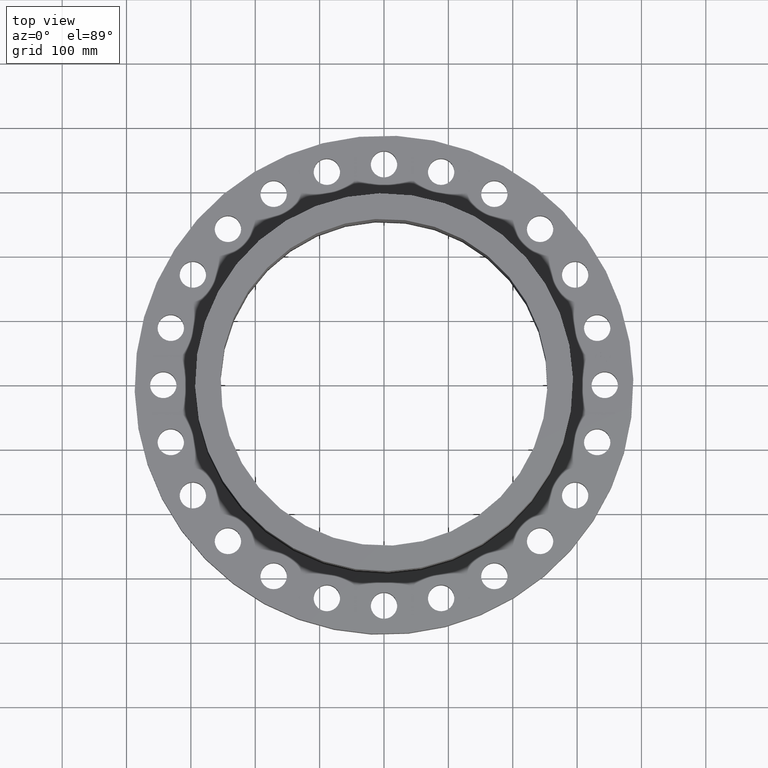
[diagram: clean part render]
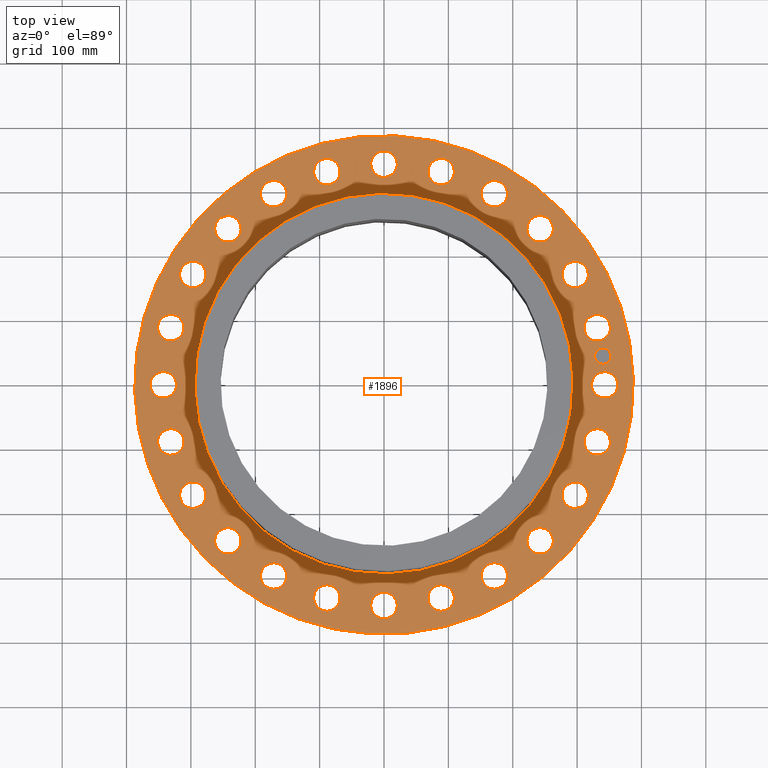
[diagram: same view with one face highlighted and labeled with its STEP entity id]
A machine part, top view. The second image highlights one B-rep face of the part: STEP entity #1896.
In plain terms, the highlighted planar face has unit normal (0, 0, -1).
Its self-contained STEP definition (entity closure, byte-faithful):
#51=AXIS2_PLACEMENT_3D('Circle Axis2P3D',#49,#50,$) ;
#542=AXIS2_PLACEMENT_3D('Circle Axis2P3D',#540,#541,$) ;
#566=AXIS2_PLACEMENT_3D('Circle Axis2P3D',#564,#565,$) ;
#585=AXIS2_PLACEMENT_3D('Circle Axis2P3D',#583,#584,$) ;
#602=AXIS2_PLACEMENT_3D('Circle Axis2P3D',#600,#601,$) ;
#637=AXIS2_PLACEMENT_3D('Circle Axis2P3D',#635,#636,$) ;
#794=AXIS2_PLACEMENT_3D('Circle Axis2P3D',#792,#793,$) ;
#813=AXIS2_PLACEMENT_3D('Circle Axis2P3D',#811,#812,$) ;
#837=AXIS2_PLACEMENT_3D('Circle Axis2P3D',#835,#836,$) ;
#856=AXIS2_PLACEMENT_3D('Circle Axis2P3D',#854,#855,$) ;
#880=AXIS2_PLACEMENT_3D('Circle Axis2P3D',#878,#879,$) ;
#899=AXIS2_PLACEMENT_3D('Circle Axis2P3D',#897,#898,$) ;
#923=AXIS2_PLACEMENT_3D('Circle Axis2P3D',#921,#922,$) ;
#942=AXIS2_PLACEMENT_3D('Circle Axis2P3D',#940,#941,$) ;
#966=AXIS2_PLACEMENT_3D('Circle Axis2P3D',#964,#965,$) ;
#985=AXIS2_PLACEMENT_3D('Circle Axis2P3D',#983,#984,$) ;
#1009=AXIS2_PLACEMENT_3D('Circle Axis2P3D',#1007,#1008,$) ;
#1028=AXIS2_PLACEMENT_3D('Circle Axis2P3D',#1026,#1027,$) ;
#1052=AXIS2_PLACEMENT_3D('Circle Axis2P3D',#1050,#1051,$) ;
#1071=AXIS2_PLACEMENT_3D('Circle Axis2P3D',#1069,#1070,$) ;
#1095=AXIS2_PLACEMENT_3D('Circle Axis2P3D',#1093,#1094,$) ;
#1114=AXIS2_PLACEMENT_3D('Circle Axis2P3D',#1112,#1113,$) ;
#1138=AXIS2_PLACEMENT_3D('Circle Axis2P3D',#1136,#1137,$) ;
#1157=AXIS2_PLACEMENT_3D('Circle Axis2P3D',#1155,#1156,$) ;
#1181=AXIS2_PLACEMENT_3D('Circle Axis2P3D',#1179,#1180,$) ;
#1200=AXIS2_PLACEMENT_3D('Circle Axis2P3D',#1198,#1199,$) ;
#1224=AXIS2_PLACEMENT_3D('Circle Axis2P3D',#1222,#1223,$) ;
#1243=AXIS2_PLACEMENT_3D('Circle Axis2P3D',#1241,#1242,$) ;
#1267=AXIS2_PLACEMENT_3D('Circle Axis2P3D',#1265,#1266,$) ;
#1286=AXIS2_PLACEMENT_3D('Circle Axis2P3D',#1284,#1285,$) ;
#1310=AXIS2_PLACEMENT_3D('Circle Axis2P3D',#1308,#1309,$) ;
#1329=AXIS2_PLACEMENT_3D('Circle Axis2P3D',#1327,#1328,$) ;
#1353=AXIS2_PLACEMENT_3D('Circle Axis2P3D',#1351,#1352,$) ;
#1372=AXIS2_PLACEMENT_3D('Circle Axis2P3D',#1370,#1371,$) ;
#1396=AXIS2_PLACEMENT_3D('Circle Axis2P3D',#1394,#1395,$) ;
#1415=AXIS2_PLACEMENT_3D('Circle Axis2P3D',#1413,#1414,$) ;
#1439=AXIS2_PLACEMENT_3D('Circle Axis2P3D',#1437,#1438,$) ;
#1458=AXIS2_PLACEMENT_3D('Circle Axis2P3D',#1456,#1457,$) ;
#1482=AXIS2_PLACEMENT_3D('Circle Axis2P3D',#1480,#1481,$) ;
#1501=AXIS2_PLACEMENT_3D('Circle Axis2P3D',#1499,#1500,$) ;
#1525=AXIS2_PLACEMENT_3D('Circle Axis2P3D',#1523,#1524,$) ;
#1544=AXIS2_PLACEMENT_3D('Circle Axis2P3D',#1542,#1543,$) ;
#1568=AXIS2_PLACEMENT_3D('Circle Axis2P3D',#1566,#1567,$) ;
#1587=AXIS2_PLACEMENT_3D('Circle Axis2P3D',#1585,#1586,$) ;
#1611=AXIS2_PLACEMENT_3D('Circle Axis2P3D',#1609,#1610,$) ;
#1630=AXIS2_PLACEMENT_3D('Circle Axis2P3D',#1628,#1629,$) ;
#1654=AXIS2_PLACEMENT_3D('Circle Axis2P3D',#1652,#1653,$) ;
#1673=AXIS2_PLACEMENT_3D('Circle Axis2P3D',#1671,#1672,$) ;
#1697=AXIS2_PLACEMENT_3D('Circle Axis2P3D',#1695,#1696,$) ;
#1716=AXIS2_PLACEMENT_3D('Circle Axis2P3D',#1714,#1715,$) ;
#1740=AXIS2_PLACEMENT_3D('Circle Axis2P3D',#1738,#1739,$) ;
#1759=AXIS2_PLACEMENT_3D('Circle Axis2P3D',#1757,#1758,$) ;
#1772=AXIS2_PLACEMENT_3D('Plane Axis2P3D',#1769,#1770,#1771) ;
#1880=AXIS2_PLACEMENT_3D('Circle Axis2P3D',#1878,#1879,$) ;
#1889=AXIS2_PLACEMENT_3D('Circle Axis2P3D',#1887,#1888,$) ;
#44=CARTESIAN_POINT('Vertex',(12.7891581249,-0.388334686271,2.75000000001)) ;
#49=CARTESIAN_POINT('Axis2P3D Location',(13.5000000001,0.,2.75000000001)) ;
#53=CARTESIAN_POINT('Vertex',(14.2108418752,0.388334686271,2.75000000001)) ;
#540=CARTESIAN_POINT('Axis2P3D Location',(13.5000000001,0.,2.75000000001)) ;
#561=CARTESIAN_POINT('Vertex',(-7.31123946374,-13.3831340689,2.75000000001)) ;
#564=CARTESIAN_POINT('Axis2P3D Location',(0.,0.,2.75000000001)) ;
#568=CARTESIAN_POINT('Vertex',(7.31123946374,13.3831340689,2.75000000001)) ;
#583=CARTESIAN_POINT('Axis2P3D Location',(0.,0.,2.75000000001)) ;
#600=CARTESIAN_POINT('Axis2P3D Location',(0.,0.,2.75000000001)) ;
#604=CARTESIAN_POINT('Vertex',(5.54215922629,10.1448544155,2.75000000001)) ;
#606=CARTESIAN_POINT('Vertex',(-5.54215922629,-10.1448544155,2.75000000001)) ;
#635=CARTESIAN_POINT('Axis2P3D Location',(0.,0.,2.75000000001)) ;
#789=CARTESIAN_POINT('Vertex',(12.2528697167,-3.68518019627,2.75000000001)) ;
#792=CARTESIAN_POINT('Axis2P3D Location',(13.039998655,-3.4940571089,2.75000000001)) ;
#796=CARTESIAN_POINT('Vertex',(13.8271275932,-3.30293402153,2.75000000001)) ;
#811=CARTESIAN_POINT('Axis2P3D Location',(13.039998655,-3.4940571089,2.75000000001)) ;
#832=CARTESIAN_POINT('Vertex',(10.8815684861,-6.73088676594,2.75000000001)) ;
#835=CARTESIAN_POINT('Axis2P3D Location',(11.6913429511,-6.75000000003,2.75000000001)) ;
#839=CARTESIAN_POINT('Vertex',(12.5011174162,-6.76911323411,2.75000000001)) ;
#854=CARTESIAN_POINT('Axis2P3D Location',(11.6913429511,-6.75000000003,2.75000000001)) ;
#875=CARTESIAN_POINT('Vertex',(8.76870634577,-9.31789452583,2.75000000001)) ;
#878=CARTESIAN_POINT('Axis2P3D Location',(9.54594154606,-9.54594154606,2.75000000001)) ;
#882=CARTESIAN_POINT('Vertex',(10.3231767463,-9.77398856628,2.75000000001)) ;
#897=CARTESIAN_POINT('Axis2P3D Location',(9.54594154606,-9.54594154606,2.75000000001)) ;
#918=CARTESIAN_POINT('Vertex',(6.05827135898,-11.2699031723,2.75000000001)) ;
#921=CARTESIAN_POINT('Axis2P3D Location',(6.75000000003,-11.6913429511,2.75000000001)) ;
#925=CARTESIAN_POINT('Vertex',(7.44172864108,-12.1127827299,2.75000000001)) ;
#940=CARTESIAN_POINT('Axis2P3D Location',(6.75000000003,-11.6913429511,2.75000000001)) ;
#961=CARTESIAN_POINT('Vertex',(2.93497519084,-12.453886542,2.75000000001)) ;
#964=CARTESIAN_POINT('Axis2P3D Location',(3.4940571089,-13.039998655,2.75000000001)) ;
#968=CARTESIAN_POINT('Vertex',(4.05313902695,-13.6261107679,2.75000000001)) ;
#983=CARTESIAN_POINT('Axis2P3D Location',(3.4940571089,-13.039998655,2.75000000001)) ;
#1004=CARTESIAN_POINT('Vertex',(-0.388334686271,-12.7891581249,2.75000000001)) ;
#1007=CARTESIAN_POINT('Axis2P3D Location',(-1.41129328698E-015,-13.5000000001,2.75000000001)) ;
#1011=CARTESIAN_POINT('Vertex',(0.388334686271,-14.2108418752,2.75000000001)) ;
#1026=CARTESIAN_POINT('Axis2P3D Location',(-1.41129328698E-015,-13.5000000001,2.75000000001)) ;
#1047=CARTESIAN_POINT('Vertex',(-3.68518019627,-12.2528697167,2.75000000001)) ;
#1050=CARTESIAN_POINT('Axis2P3D Location',(-3.4940571089,-13.039998655,2.75000000001)) ;
#1054=CARTESIAN_POINT('Vertex',(-3.30293402153,-13.8271275932,2.75000000001)) ;
#1069=CARTESIAN_POINT('Axis2P3D Location',(-3.4940571089,-13.039998655,2.75000000001)) ;
#1090=CARTESIAN_POINT('Vertex',(-6.73088676594,-10.8815684861,2.75000000001)) ;
#1093=CARTESIAN_POINT('Axis2P3D Location',(-6.75000000003,-11.6913429511,2.75000000001)) ;
#1097=CARTESIAN_POINT('Vertex',(-6.76911323411,-12.5011174162,2.75000000001)) ;
#1112=CARTESIAN_POINT('Axis2P3D Location',(-6.75000000003,-11.6913429511,2.75000000001)) ;
#1133=CARTESIAN_POINT('Vertex',(-9.31789452583,-8.76870634577,2.75000000001)) ;
#1136=CARTESIAN_POINT('Axis2P3D Location',(-9.54594154606,-9.54594154606,2.75000000001)) ;
#1140=CARTESIAN_POINT('Vertex',(-9.77398856628,-10.3231767463,2.75000000001)) ;
#1155=CARTESIAN_POINT('Axis2P3D Location',(-9.54594154606,-9.54594154606,2.75000000001)) ;
#1176=CARTESIAN_POINT('Vertex',(-11.2699031723,-6.05827135898,2.75000000001)) ;
#1179=CARTESIAN_POINT('Axis2P3D Location',(-11.6913429511,-6.75000000003,2.75000000001)) ;
#1183=CARTESIAN_POINT('Vertex',(-12.1127827299,-7.44172864108,2.75000000001)) ;
#1198=CARTESIAN_POINT('Axis2P3D Location',(-11.6913429511,-6.75000000003,2.75000000001)) ;
#1219=CARTESIAN_POINT('Vertex',(-12.453886542,-2.93497519084,2.75000000001)) ;
#1222=CARTESIAN_POINT('Axis2P3D Location',(-13.039998655,-3.4940571089,2.75000000001)) ;
#1226=CARTESIAN_POINT('Vertex',(-13.6261107679,-4.05313902695,2.75000000001)) ;
#1241=CARTESIAN_POINT('Axis2P3D Location',(-13.039998655,-3.4940571089,2.75000000001)) ;
#1262=CARTESIAN_POINT('Vertex',(-12.7891581249,0.388334686271,2.75000000001)) ;
#1265=CARTESIAN_POINT('Axis2P3D Location',(-13.5000000001,-1.65327317886E-015,2.75000000001)) ;
#1269=CARTESIAN_POINT('Vertex',(-14.2108418752,-0.388334686271,2.75000000001)) ;
#1284=CARTESIAN_POINT('Axis2P3D Location',(-13.5000000001,-1.65327317886E-015,2.75000000001)) ;
#1305=CARTESIAN_POINT('Vertex',(-12.2528697167,3.68518019627,2.75000000001)) ;
#1308=CARTESIAN_POINT('Axis2P3D Location',(-13.039998655,3.4940571089,2.75000000001)) ;
#1312=CARTESIAN_POINT('Vertex',(-13.8271275932,3.30293402153,2.75000000001)) ;
#1327=CARTESIAN_POINT('Axis2P3D Location',(-13.039998655,3.4940571089,2.75000000001)) ;
#1348=CARTESIAN_POINT('Vertex',(-10.8815684861,6.73088676594,2.75000000001)) ;
#1351=CARTESIAN_POINT('Axis2P3D Location',(-11.6913429511,6.75000000003,2.75000000001)) ;
#1355=CARTESIAN_POINT('Vertex',(-12.5011174162,6.76911323411,2.75000000001)) ;
#1370=CARTESIAN_POINT('Axis2P3D Location',(-11.6913429511,6.75000000003,2.75000000001)) ;
#1391=CARTESIAN_POINT('Vertex',(-8.76870634577,9.31789452583,2.75000000001)) ;
#1394=CARTESIAN_POINT('Axis2P3D Location',(-9.54594154606,9.54594154606,2.75000000001)) ;
#1398=CARTESIAN_POINT('Vertex',(-10.3231767463,9.77398856628,2.75000000001)) ;
#1413=CARTESIAN_POINT('Axis2P3D Location',(-9.54594154606,9.54594154606,2.75000000001)) ;
#1434=CARTESIAN_POINT('Vertex',(-6.05827135898,11.2699031723,2.75000000001)) ;
#1437=CARTESIAN_POINT('Axis2P3D Location',(-6.75000000003,11.6913429511,2.75000000001)) ;
#1441=CARTESIAN_POINT('Vertex',(-7.44172864108,12.1127827299,2.75000000001)) ;
#1456=CARTESIAN_POINT('Axis2P3D Location',(-6.75000000003,11.6913429511,2.75000000001)) ;
#1477=CARTESIAN_POINT('Vertex',(-2.93497519084,12.453886542,2.75000000001)) ;
#1480=CARTESIAN_POINT('Axis2P3D Location',(-3.4940571089,13.039998655,2.75000000001)) ;
#1484=CARTESIAN_POINT('Vertex',(-4.05313902695,13.6261107679,2.75000000001)) ;
#1499=CARTESIAN_POINT('Axis2P3D Location',(-3.4940571089,13.039998655,2.75000000001)) ;
#1520=CARTESIAN_POINT('Vertex',(0.388334686271,12.7891581249,2.75000000001)) ;
#1523=CARTESIAN_POINT('Axis2P3D Location',(-2.47990976828E-015,13.5000000001,2.75000000001)) ;
#1527=CARTESIAN_POINT('Vertex',(-0.388334686271,14.2108418752,2.75000000001)) ;
#1542=CARTESIAN_POINT('Axis2P3D Location',(-2.47990976828E-015,13.5000000001,2.75000000001)) ;
#1563=CARTESIAN_POINT('Vertex',(3.68518019627,12.2528697167,2.75000000001)) ;
#1566=CARTESIAN_POINT('Axis2P3D Location',(3.4940571089,13.039998655,2.75000000001)) ;
#1570=CARTESIAN_POINT('Vertex',(3.30293402153,13.8271275932,2.75000000001)) ;
#1585=CARTESIAN_POINT('Axis2P3D Location',(3.4940571089,13.039998655,2.75000000001)) ;
#1606=CARTESIAN_POINT('Vertex',(6.73088676594,10.8815684861,2.75000000001)) ;
#1609=CARTESIAN_POINT('Axis2P3D Location',(6.75000000003,11.6913429511,2.75000000001)) ;
#1613=CARTESIAN_POINT('Vertex',(6.76911323411,12.5011174162,2.75000000001)) ;
#1628=CARTESIAN_POINT('Axis2P3D Location',(6.75000000003,11.6913429511,2.75000000001)) ;
#1649=CARTESIAN_POINT('Vertex',(9.31789452583,8.76870634577,2.75000000001)) ;
#1652=CARTESIAN_POINT('Axis2P3D Location',(9.54594154606,9.54594154606,2.75000000001)) ;
#1656=CARTESIAN_POINT('Vertex',(9.77398856628,10.3231767463,2.75000000001)) ;
#1671=CARTESIAN_POINT('Axis2P3D Location',(9.54594154606,9.54594154606,2.75000000001)) ;
#1692=CARTESIAN_POINT('Vertex',(11.2699031723,6.05827135898,2.75000000001)) ;
#1695=CARTESIAN_POINT('Axis2P3D Location',(11.6913429511,6.75000000003,2.75000000001)) ;
#1699=CARTESIAN_POINT('Vertex',(12.1127827299,7.44172864108,2.75000000001)) ;
#1714=CARTESIAN_POINT('Axis2P3D Location',(11.6913429511,6.75000000003,2.75000000001)) ;
#1735=CARTESIAN_POINT('Vertex',(12.453886542,2.93497519084,2.75000000001)) ;
#1738=CARTESIAN_POINT('Axis2P3D Location',(13.039998655,3.4940571089,2.75000000001)) ;
#1742=CARTESIAN_POINT('Vertex',(13.6261107679,4.05313902695,2.75000000001)) ;
#1757=CARTESIAN_POINT('Axis2P3D Location',(13.039998655,3.4940571089,2.75000000001)) ;
#1769=CARTESIAN_POINT('Axis2P3D Location',(0.,15.2500000001,2.75000000001)) ;
#1878=CARTESIAN_POINT('Axis2P3D Location',(13.3845056286,1.76210359498,2.75000000001)) ;
#1882=CARTESIAN_POINT('Vertex',(13.4497687241,1.26638116925,2.75000000001)) ;
#1884=CARTESIAN_POINT('Vertex',(13.3192425331,2.25782602071,2.75000000001)) ;
#1887=CARTESIAN_POINT('Axis2P3D Location',(13.3845056286,1.76210359498,2.75000000001)) ;
#50=DIRECTION('Axis2P3D Direction',(0.,-0.,0.0393700787402)) ;
#541=DIRECTION('Axis2P3D Direction',(0.,-0.,0.0393700787402)) ;
#565=DIRECTION('Axis2P3D Direction',(0.,0.,-0.0393700787402)) ;
#584=DIRECTION('Axis2P3D Direction',(0.,0.,-0.0393700787402)) ;
#601=DIRECTION('Axis2P3D Direction',(0.,0.,-0.0393700787402)) ;
#636=DIRECTION('Axis2P3D Direction',(0.,0.,-0.0393700787402)) ;
#793=DIRECTION('Axis2P3D Direction',(-0.,0.,0.0393700787402)) ;
#812=DIRECTION('Axis2P3D Direction',(-0.,0.,0.0393700787402)) ;
#836=DIRECTION('Axis2P3D Direction',(-0.,0.,0.0393700787402)) ;
#855=DIRECTION('Axis2P3D Direction',(-0.,0.,0.0393700787402)) ;
#879=DIRECTION('Axis2P3D Direction',(-0.,0.,0.0393700787402)) ;
#898=DIRECTION('Axis2P3D Direction',(-0.,0.,0.0393700787402)) ;
#922=DIRECTION('Axis2P3D Direction',(-0.,0.,0.0393700787402)) ;
#941=DIRECTION('Axis2P3D Direction',(-0.,0.,0.0393700787402)) ;
#965=DIRECTION('Axis2P3D Direction',(-0.,0.,0.0393700787402)) ;
#984=DIRECTION('Axis2P3D Direction',(-0.,0.,0.0393700787402)) ;
#1008=DIRECTION('Axis2P3D Direction',(-0.,0.,0.0393700787402)) ;
#1027=DIRECTION('Axis2P3D Direction',(-0.,0.,0.0393700787402)) ;
#1051=DIRECTION('Axis2P3D Direction',(0.,0.,0.0393700787402)) ;
#1070=DIRECTION('Axis2P3D Direction',(0.,0.,0.0393700787402)) ;
#1094=DIRECTION('Axis2P3D Direction',(0.,0.,0.0393700787402)) ;
#1113=DIRECTION('Axis2P3D Direction',(0.,0.,0.0393700787402)) ;
#1137=DIRECTION('Axis2P3D Direction',(0.,0.,0.0393700787402)) ;
#1156=DIRECTION('Axis2P3D Direction',(0.,0.,0.0393700787402)) ;
#1180=DIRECTION('Axis2P3D Direction',(0.,0.,0.0393700787402)) ;
#1199=DIRECTION('Axis2P3D Direction',(0.,0.,0.0393700787402)) ;
#1223=DIRECTION('Axis2P3D Direction',(0.,0.,0.0393700787402)) ;
#1242=DIRECTION('Axis2P3D Direction',(0.,0.,0.0393700787402)) ;
#1266=DIRECTION('Axis2P3D Direction',(0.,0.,0.0393700787402)) ;
#1285=DIRECTION('Axis2P3D Direction',(0.,0.,0.0393700787402)) ;
#1309=DIRECTION('Axis2P3D Direction',(0.,0.,0.0393700787402)) ;
#1328=DIRECTION('Axis2P3D Direction',(0.,0.,0.0393700787402)) ;
#1352=DIRECTION('Axis2P3D Direction',(0.,0.,0.0393700787402)) ;
#1371=DIRECTION('Axis2P3D Direction',(0.,0.,0.0393700787402)) ;
#1395=DIRECTION('Axis2P3D Direction',(0.,0.,0.0393700787402)) ;
#1414=DIRECTION('Axis2P3D Direction',(0.,0.,0.0393700787402)) ;
#1438=DIRECTION('Axis2P3D Direction',(0.,0.,0.0393700787402)) ;
#1457=DIRECTION('Axis2P3D Direction',(0.,0.,0.0393700787402)) ;
#1481=DIRECTION('Axis2P3D Direction',(0.,0.,0.0393700787402)) ;
#1500=DIRECTION('Axis2P3D Direction',(0.,0.,0.0393700787402)) ;
#1524=DIRECTION('Axis2P3D Direction',(0.,0.,0.0393700787402)) ;
#1543=DIRECTION('Axis2P3D Direction',(0.,0.,0.0393700787402)) ;
#1567=DIRECTION('Axis2P3D Direction',(0.,-0.,0.0393700787402)) ;
#1586=DIRECTION('Axis2P3D Direction',(0.,-0.,0.0393700787402)) ;
#1610=DIRECTION('Axis2P3D Direction',(0.,-0.,0.0393700787402)) ;
#1629=DIRECTION('Axis2P3D Direction',(0.,-0.,0.0393700787402)) ;
#1653=DIRECTION('Axis2P3D Direction',(0.,-0.,0.0393700787402)) ;
#1672=DIRECTION('Axis2P3D Direction',(0.,-0.,0.0393700787402)) ;
#1696=DIRECTION('Axis2P3D Direction',(0.,-0.,0.0393700787402)) ;
#1715=DIRECTION('Axis2P3D Direction',(0.,-0.,0.0393700787402)) ;
#1739=DIRECTION('Axis2P3D Direction',(0.,-0.,0.0393700787402)) ;
#1758=DIRECTION('Axis2P3D Direction',(0.,-0.,0.0393700787402)) ;
#1770=DIRECTION('Axis2P3D Direction',(0.,0.,-0.0393700787402)) ;
#1771=DIRECTION('Axis2P3D XDirection',(0.0393700787402,0.,0.)) ;
#1879=DIRECTION('Axis2P3D Direction',(0.,0.,-0.0393700787402)) ;
#1888=DIRECTION('Axis2P3D Direction',(0.,0.,-0.0393700787402)) ;
#1775=ORIENTED_EDGE('',*,*,#587,.F.) ;
#1776=ORIENTED_EDGE('',*,*,#570,.F.) ;
#1779=ORIENTED_EDGE('',*,*,#55,.T.) ;
#1780=ORIENTED_EDGE('',*,*,#544,.T.) ;
#1783=ORIENTED_EDGE('',*,*,#639,.T.) ;
#1784=ORIENTED_EDGE('',*,*,#608,.T.) ;
#1787=ORIENTED_EDGE('',*,*,#815,.T.) ;
#1788=ORIENTED_EDGE('',*,*,#798,.T.) ;
#1791=ORIENTED_EDGE('',*,*,#858,.T.) ;
#1792=ORIENTED_EDGE('',*,*,#841,.T.) ;
#1795=ORIENTED_EDGE('',*,*,#901,.T.) ;
#1796=ORIENTED_EDGE('',*,*,#884,.T.) ;
#1799=ORIENTED_EDGE('',*,*,#944,.T.) ;
#1800=ORIENTED_EDGE('',*,*,#927,.T.) ;
#1803=ORIENTED_EDGE('',*,*,#987,.T.) ;
#1804=ORIENTED_EDGE('',*,*,#970,.T.) ;
#1807=ORIENTED_EDGE('',*,*,#1030,.T.) ;
#1808=ORIENTED_EDGE('',*,*,#1013,.T.) ;
#1811=ORIENTED_EDGE('',*,*,#1073,.T.) ;
#1812=ORIENTED_EDGE('',*,*,#1056,.T.) ;
#1815=ORIENTED_EDGE('',*,*,#1116,.T.) ;
#1816=ORIENTED_EDGE('',*,*,#1099,.T.) ;
#1819=ORIENTED_EDGE('',*,*,#1159,.T.) ;
#1820=ORIENTED_EDGE('',*,*,#1142,.T.) ;
#1823=ORIENTED_EDGE('',*,*,#1202,.T.) ;
#1824=ORIENTED_EDGE('',*,*,#1185,.T.) ;
#1827=ORIENTED_EDGE('',*,*,#1245,.T.) ;
#1828=ORIENTED_EDGE('',*,*,#1228,.T.) ;
#1831=ORIENTED_EDGE('',*,*,#1288,.T.) ;
#1832=ORIENTED_EDGE('',*,*,#1271,.T.) ;
#1835=ORIENTED_EDGE('',*,*,#1331,.T.) ;
#1836=ORIENTED_EDGE('',*,*,#1314,.T.) ;
#1839=ORIENTED_EDGE('',*,*,#1374,.T.) ;
#1840=ORIENTED_EDGE('',*,*,#1357,.T.) ;
#1843=ORIENTED_EDGE('',*,*,#1417,.T.) ;
#1844=ORIENTED_EDGE('',*,*,#1400,.T.) ;
#1847=ORIENTED_EDGE('',*,*,#1460,.T.) ;
#1848=ORIENTED_EDGE('',*,*,#1443,.T.) ;
#1851=ORIENTED_EDGE('',*,*,#1503,.T.) ;
#1852=ORIENTED_EDGE('',*,*,#1486,.T.) ;
#1855=ORIENTED_EDGE('',*,*,#1546,.T.) ;
#1856=ORIENTED_EDGE('',*,*,#1529,.T.) ;
#1859=ORIENTED_EDGE('',*,*,#1589,.T.) ;
#1860=ORIENTED_EDGE('',*,*,#1572,.T.) ;
#1863=ORIENTED_EDGE('',*,*,#1632,.T.) ;
#1864=ORIENTED_EDGE('',*,*,#1615,.T.) ;
#1867=ORIENTED_EDGE('',*,*,#1675,.T.) ;
#1868=ORIENTED_EDGE('',*,*,#1658,.T.) ;
#1871=ORIENTED_EDGE('',*,*,#1718,.T.) ;
#1872=ORIENTED_EDGE('',*,*,#1701,.T.) ;
#1875=ORIENTED_EDGE('',*,*,#1761,.T.) ;
#1876=ORIENTED_EDGE('',*,*,#1744,.T.) ;
#1893=ORIENTED_EDGE('',*,*,#1886,.F.) ;
#1894=ORIENTED_EDGE('',*,*,#1891,.F.) ;
#1781=FACE_BOUND('',#1778,.T.) ;
#1785=FACE_BOUND('',#1782,.T.) ;
#1789=FACE_BOUND('',#1786,.T.) ;
#1793=FACE_BOUND('',#1790,.T.) ;
#1797=FACE_BOUND('',#1794,.T.) ;
#1801=FACE_BOUND('',#1798,.T.) ;
#1805=FACE_BOUND('',#1802,.T.) ;
#1809=FACE_BOUND('',#1806,.T.) ;
#1813=FACE_BOUND('',#1810,.T.) ;
#1817=FACE_BOUND('',#1814,.T.) ;
#1821=FACE_BOUND('',#1818,.T.) ;
#1825=FACE_BOUND('',#1822,.T.) ;
#1829=FACE_BOUND('',#1826,.T.) ;
#1833=FACE_BOUND('',#1830,.T.) ;
#1837=FACE_BOUND('',#1834,.T.) ;
#1841=FACE_BOUND('',#1838,.T.) ;
#1845=FACE_BOUND('',#1842,.T.) ;
#1849=FACE_BOUND('',#1846,.T.) ;
#1853=FACE_BOUND('',#1850,.T.) ;
#1857=FACE_BOUND('',#1854,.T.) ;
#1861=FACE_BOUND('',#1858,.T.) ;
#1865=FACE_BOUND('',#1862,.T.) ;
#1869=FACE_BOUND('',#1866,.T.) ;
#1873=FACE_BOUND('',#1870,.T.) ;
#1877=FACE_BOUND('',#1874,.T.) ;
#1895=FACE_BOUND('',#1892,.T.) ;
#1896=ADVANCED_FACE('PartBody',(#1777,#1781,#1785,#1789,#1793,#1797,#1801,#1805,#1809,#1813,#1817,#1821,#1825,#1829,#1833,#1837,#1841,#1845,#1849,#1853,#1857,#1861,#1865,#1869,#1873,#1877,#1895),#1773,.F.) ;
#52=CIRCLE('generated circle',#51,0.810000000003) ;
#543=CIRCLE('generated circle',#542,0.810000000003) ;
#567=CIRCLE('generated circle',#566,15.2500000001) ;
#586=CIRCLE('generated circle',#585,15.2500000001) ;
#603=CIRCLE('generated circle',#602,11.56) ;
#638=CIRCLE('generated circle',#637,11.56) ;
#795=CIRCLE('generated circle',#794,0.810000000003) ;
#814=CIRCLE('generated circle',#813,0.810000000003) ;
#838=CIRCLE('generated circle',#837,0.810000000003) ;
#857=CIRCLE('generated circle',#856,0.810000000003) ;
#881=CIRCLE('generated circle',#880,0.810000000003) ;
#900=CIRCLE('generated circle',#899,0.810000000003) ;
#924=CIRCLE('generated circle',#923,0.810000000003) ;
#943=CIRCLE('generated circle',#942,0.810000000003) ;
#967=CIRCLE('generated circle',#966,0.810000000003) ;
#986=CIRCLE('generated circle',#985,0.810000000003) ;
#1010=CIRCLE('generated circle',#1009,0.810000000003) ;
#1029=CIRCLE('generated circle',#1028,0.810000000003) ;
#1053=CIRCLE('generated circle',#1052,0.810000000003) ;
#1072=CIRCLE('generated circle',#1071,0.810000000003) ;
#1096=CIRCLE('generated circle',#1095,0.810000000003) ;
#1115=CIRCLE('generated circle',#1114,0.810000000003) ;
#1139=CIRCLE('generated circle',#1138,0.810000000003) ;
#1158=CIRCLE('generated circle',#1157,0.810000000003) ;
#1182=CIRCLE('generated circle',#1181,0.810000000003) ;
#1201=CIRCLE('generated circle',#1200,0.810000000003) ;
#1225=CIRCLE('generated circle',#1224,0.810000000003) ;
#1244=CIRCLE('generated circle',#1243,0.810000000003) ;
#1268=CIRCLE('generated circle',#1267,0.810000000003) ;
#1287=CIRCLE('generated circle',#1286,0.810000000003) ;
#1311=CIRCLE('generated circle',#1310,0.810000000003) ;
#1330=CIRCLE('generated circle',#1329,0.810000000003) ;
#1354=CIRCLE('generated circle',#1353,0.810000000003) ;
#1373=CIRCLE('generated circle',#1372,0.810000000003) ;
#1397=CIRCLE('generated circle',#1396,0.810000000003) ;
#1416=CIRCLE('generated circle',#1415,0.810000000003) ;
#1440=CIRCLE('generated circle',#1439,0.810000000003) ;
#1459=CIRCLE('generated circle',#1458,0.810000000003) ;
#1483=CIRCLE('generated circle',#1482,0.810000000003) ;
#1502=CIRCLE('generated circle',#1501,0.810000000003) ;
#1526=CIRCLE('generated circle',#1525,0.810000000003) ;
#1545=CIRCLE('generated circle',#1544,0.810000000003) ;
#1569=CIRCLE('generated circle',#1568,0.810000000003) ;
#1588=CIRCLE('generated circle',#1587,0.810000000003) ;
#1612=CIRCLE('generated circle',#1611,0.810000000003) ;
#1631=CIRCLE('generated circle',#1630,0.810000000003) ;
#1655=CIRCLE('generated circle',#1654,0.810000000003) ;
#1674=CIRCLE('generated circle',#1673,0.810000000003) ;
#1698=CIRCLE('generated circle',#1697,0.810000000003) ;
#1717=CIRCLE('generated circle',#1716,0.810000000003) ;
#1741=CIRCLE('generated circle',#1740,0.810000000003) ;
#1760=CIRCLE('generated circle',#1759,0.810000000003) ;
#1881=CIRCLE('generated circle',#1880,0.499999995002) ;
#1890=CIRCLE('generated circle',#1889,0.499999995002) ;
#55=EDGE_CURVE('',#54,#45,#52,.F.) ;
#544=EDGE_CURVE('',#45,#54,#543,.F.) ;
#570=EDGE_CURVE('',#562,#569,#567,.T.) ;
#587=EDGE_CURVE('',#569,#562,#586,.T.) ;
#608=EDGE_CURVE('',#605,#607,#603,.T.) ;
#639=EDGE_CURVE('',#607,#605,#638,.T.) ;
#798=EDGE_CURVE('',#797,#790,#795,.F.) ;
#815=EDGE_CURVE('',#790,#797,#814,.F.) ;
#841=EDGE_CURVE('',#840,#833,#838,.F.) ;
#858=EDGE_CURVE('',#833,#840,#857,.F.) ;
#884=EDGE_CURVE('',#883,#876,#881,.F.) ;
#901=EDGE_CURVE('',#876,#883,#900,.F.) ;
#927=EDGE_CURVE('',#926,#919,#924,.F.) ;
#944=EDGE_CURVE('',#919,#926,#943,.F.) ;
#970=EDGE_CURVE('',#969,#962,#967,.F.) ;
#987=EDGE_CURVE('',#962,#969,#986,.F.) ;
#1013=EDGE_CURVE('',#1012,#1005,#1010,.F.) ;
#1030=EDGE_CURVE('',#1005,#1012,#1029,.F.) ;
#1056=EDGE_CURVE('',#1055,#1048,#1053,.F.) ;
#1073=EDGE_CURVE('',#1048,#1055,#1072,.F.) ;
#1099=EDGE_CURVE('',#1098,#1091,#1096,.F.) ;
#1116=EDGE_CURVE('',#1091,#1098,#1115,.F.) ;
#1142=EDGE_CURVE('',#1141,#1134,#1139,.F.) ;
#1159=EDGE_CURVE('',#1134,#1141,#1158,.F.) ;
#1185=EDGE_CURVE('',#1184,#1177,#1182,.F.) ;
#1202=EDGE_CURVE('',#1177,#1184,#1201,.F.) ;
#1228=EDGE_CURVE('',#1227,#1220,#1225,.F.) ;
#1245=EDGE_CURVE('',#1220,#1227,#1244,.F.) ;
#1271=EDGE_CURVE('',#1270,#1263,#1268,.F.) ;
#1288=EDGE_CURVE('',#1263,#1270,#1287,.F.) ;
#1314=EDGE_CURVE('',#1313,#1306,#1311,.F.) ;
#1331=EDGE_CURVE('',#1306,#1313,#1330,.F.) ;
#1357=EDGE_CURVE('',#1356,#1349,#1354,.F.) ;
#1374=EDGE_CURVE('',#1349,#1356,#1373,.F.) ;
#1400=EDGE_CURVE('',#1399,#1392,#1397,.F.) ;
#1417=EDGE_CURVE('',#1392,#1399,#1416,.F.) ;
#1443=EDGE_CURVE('',#1442,#1435,#1440,.F.) ;
#1460=EDGE_CURVE('',#1435,#1442,#1459,.F.) ;
#1486=EDGE_CURVE('',#1485,#1478,#1483,.F.) ;
#1503=EDGE_CURVE('',#1478,#1485,#1502,.F.) ;
#1529=EDGE_CURVE('',#1528,#1521,#1526,.F.) ;
#1546=EDGE_CURVE('',#1521,#1528,#1545,.F.) ;
#1572=EDGE_CURVE('',#1571,#1564,#1569,.F.) ;
#1589=EDGE_CURVE('',#1564,#1571,#1588,.F.) ;
#1615=EDGE_CURVE('',#1614,#1607,#1612,.F.) ;
#1632=EDGE_CURVE('',#1607,#1614,#1631,.F.) ;
#1658=EDGE_CURVE('',#1657,#1650,#1655,.F.) ;
#1675=EDGE_CURVE('',#1650,#1657,#1674,.F.) ;
#1701=EDGE_CURVE('',#1700,#1693,#1698,.F.) ;
#1718=EDGE_CURVE('',#1693,#1700,#1717,.F.) ;
#1744=EDGE_CURVE('',#1743,#1736,#1741,.F.) ;
#1761=EDGE_CURVE('',#1736,#1743,#1760,.F.) ;
#1886=EDGE_CURVE('',#1883,#1885,#1881,.F.) ;
#1891=EDGE_CURVE('',#1885,#1883,#1890,.F.) ;
#1774=EDGE_LOOP('',(#1775,#1776)) ;
#1778=EDGE_LOOP('',(#1779,#1780)) ;
#1782=EDGE_LOOP('',(#1783,#1784)) ;
#1786=EDGE_LOOP('',(#1787,#1788)) ;
#1790=EDGE_LOOP('',(#1791,#1792)) ;
#1794=EDGE_LOOP('',(#1795,#1796)) ;
#1798=EDGE_LOOP('',(#1799,#1800)) ;
#1802=EDGE_LOOP('',(#1803,#1804)) ;
#1806=EDGE_LOOP('',(#1807,#1808)) ;
#1810=EDGE_LOOP('',(#1811,#1812)) ;
#1814=EDGE_LOOP('',(#1815,#1816)) ;
#1818=EDGE_LOOP('',(#1819,#1820)) ;
#1822=EDGE_LOOP('',(#1823,#1824)) ;
#1826=EDGE_LOOP('',(#1827,#1828)) ;
#1830=EDGE_LOOP('',(#1831,#1832)) ;
#1834=EDGE_LOOP('',(#1835,#1836)) ;
#1838=EDGE_LOOP('',(#1839,#1840)) ;
#1842=EDGE_LOOP('',(#1843,#1844)) ;
#1846=EDGE_LOOP('',(#1847,#1848)) ;
#1850=EDGE_LOOP('',(#1851,#1852)) ;
#1854=EDGE_LOOP('',(#1855,#1856)) ;
#1858=EDGE_LOOP('',(#1859,#1860)) ;
#1862=EDGE_LOOP('',(#1863,#1864)) ;
#1866=EDGE_LOOP('',(#1867,#1868)) ;
#1870=EDGE_LOOP('',(#1871,#1872)) ;
#1874=EDGE_LOOP('',(#1875,#1876)) ;
#1892=EDGE_LOOP('',(#1893,#1894)) ;
#1777=FACE_OUTER_BOUND('',#1774,.T.) ;
#1773=PLANE('',#1772) ;
#45=VERTEX_POINT('',#44) ;
#54=VERTEX_POINT('',#53) ;
#562=VERTEX_POINT('',#561) ;
#569=VERTEX_POINT('',#568) ;
#605=VERTEX_POINT('',#604) ;
#607=VERTEX_POINT('',#606) ;
#790=VERTEX_POINT('',#789) ;
#797=VERTEX_POINT('',#796) ;
#833=VERTEX_POINT('',#832) ;
#840=VERTEX_POINT('',#839) ;
#876=VERTEX_POINT('',#875) ;
#883=VERTEX_POINT('',#882) ;
#919=VERTEX_POINT('',#918) ;
#926=VERTEX_POINT('',#925) ;
#962=VERTEX_POINT('',#961) ;
#969=VERTEX_POINT('',#968) ;
#1005=VERTEX_POINT('',#1004) ;
#1012=VERTEX_POINT('',#1011) ;
#1048=VERTEX_POINT('',#1047) ;
#1055=VERTEX_POINT('',#1054) ;
#1091=VERTEX_POINT('',#1090) ;
#1098=VERTEX_POINT('',#1097) ;
#1134=VERTEX_POINT('',#1133) ;
#1141=VERTEX_POINT('',#1140) ;
#1177=VERTEX_POINT('',#1176) ;
#1184=VERTEX_POINT('',#1183) ;
#1220=VERTEX_POINT('',#1219) ;
#1227=VERTEX_POINT('',#1226) ;
#1263=VERTEX_POINT('',#1262) ;
#1270=VERTEX_POINT('',#1269) ;
#1306=VERTEX_POINT('',#1305) ;
#1313=VERTEX_POINT('',#1312) ;
#1349=VERTEX_POINT('',#1348) ;
#1356=VERTEX_POINT('',#1355) ;
#1392=VERTEX_POINT('',#1391) ;
#1399=VERTEX_POINT('',#1398) ;
#1435=VERTEX_POINT('',#1434) ;
#1442=VERTEX_POINT('',#1441) ;
#1478=VERTEX_POINT('',#1477) ;
#1485=VERTEX_POINT('',#1484) ;
#1521=VERTEX_POINT('',#1520) ;
#1528=VERTEX_POINT('',#1527) ;
#1564=VERTEX_POINT('',#1563) ;
#1571=VERTEX_POINT('',#1570) ;
#1607=VERTEX_POINT('',#1606) ;
#1614=VERTEX_POINT('',#1613) ;
#1650=VERTEX_POINT('',#1649) ;
#1657=VERTEX_POINT('',#1656) ;
#1693=VERTEX_POINT('',#1692) ;
#1700=VERTEX_POINT('',#1699) ;
#1736=VERTEX_POINT('',#1735) ;
#1743=VERTEX_POINT('',#1742) ;
#1883=VERTEX_POINT('',#1882) ;
#1885=VERTEX_POINT('',#1884) ;